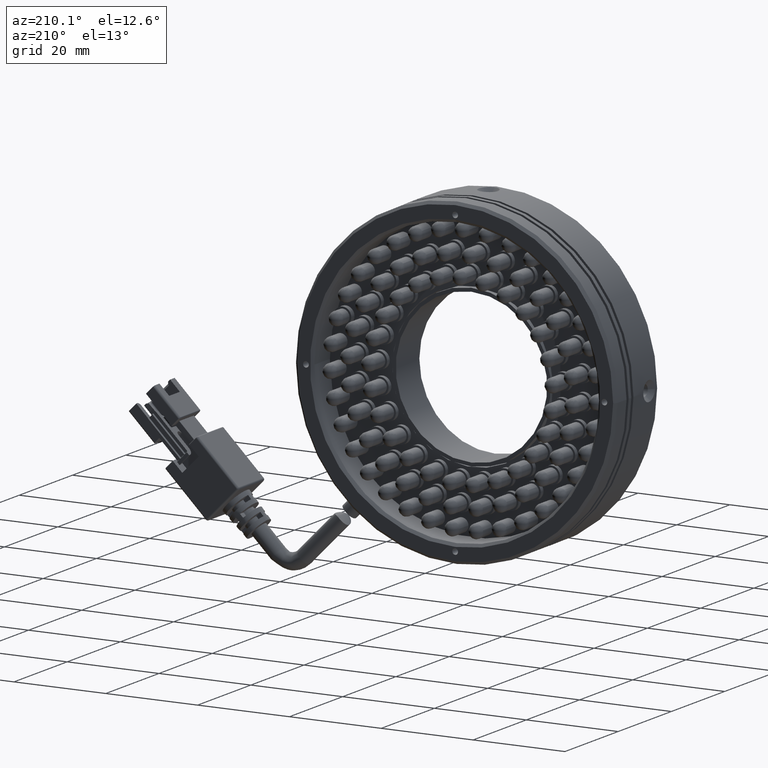
[diagram: clean part render]
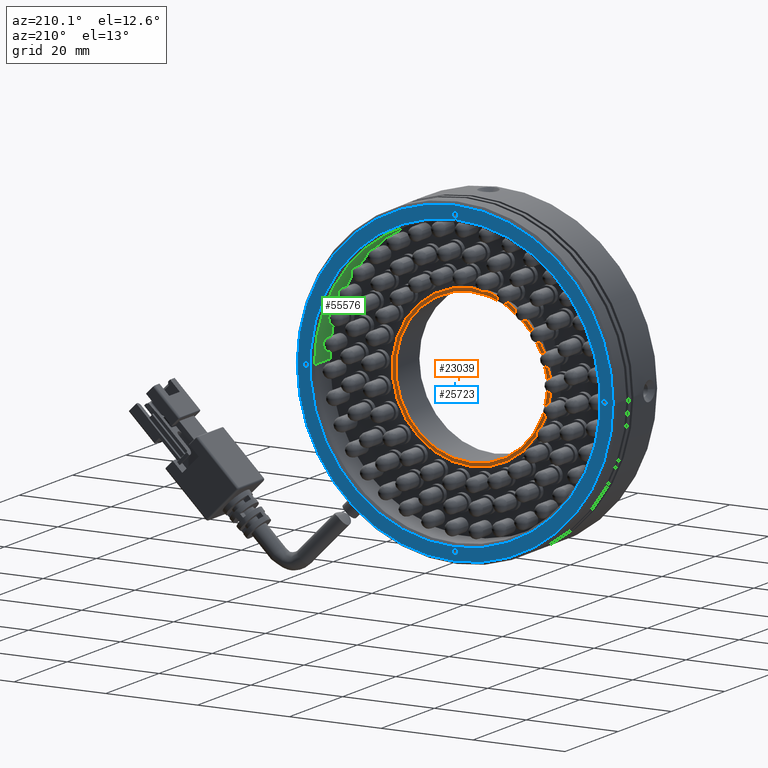
[diagram: same view with three faces highlighted in distinct colors, each labeled with its STEP entity id]
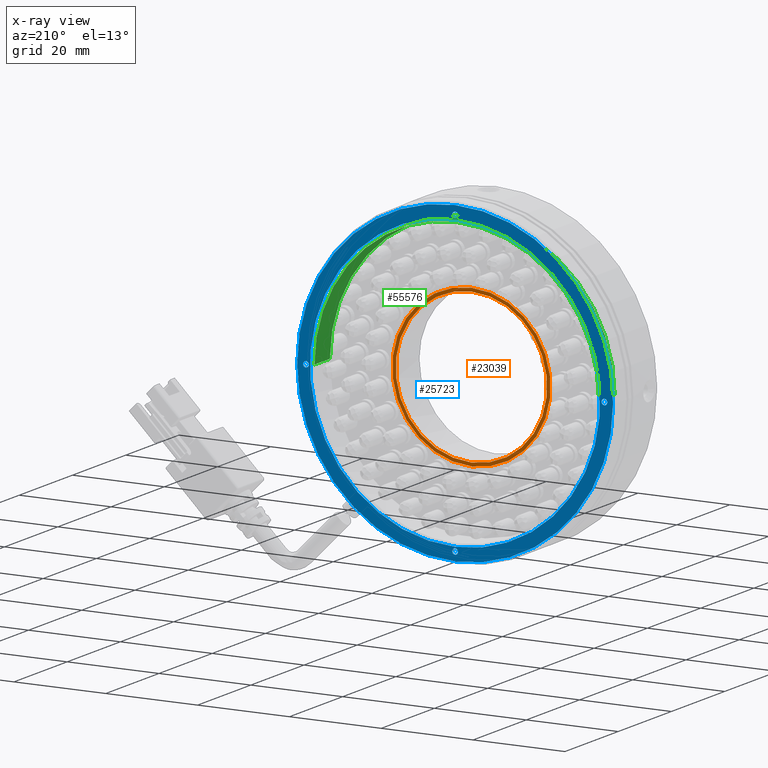
[diagram: x-ray of the same camera — body ghosted, the three highlighted faces saturated]
A machine part, auxiliary view with three faces highlighted in distinct colors.
The next image is the same camera in x-ray (body ghosted, the three faces saturated) — at least one of them is partly hidden behind the body in this view.
Their STEP definitions:

[orange] entity #23039 — the highlighted planar face has unit normal (0, -1, 0).
#7401 = CARTESIAN_POINT ( 'NONE',  ( -24.92313932795383400, 5.620185881597988600, 0.0000000000000000000 ) ) ;
#10819 = CARTESIAN_POINT ( 'NONE',  ( -24.92313932795383400, 5.620185881597988600, 16.50000000000000700 ) ) ;
#14003 = DIRECTION ( 'NONE',  ( 0.0000000000000000000, 0.0000000000000000000, 1.000000000000000000 ) ) ;
#14969 = EDGE_CURVE ( 'NONE', #53001, #51553, #66699, .T. ) ;
#16779 = AXIS2_PLACEMENT_3D ( 'NONE', #59810, #20650, #66394 ) ;
#19070 = CARTESIAN_POINT ( 'NONE',  ( -24.92313932795383000, 5.620185881597988600, -17.25000000000000700 ) ) ;
#19380 = ORIENTED_EDGE ( 'NONE', *, *, #22209, .T. ) ;
#19651 = CARTESIAN_POINT ( 'NONE',  ( -8.423139327953826700, 5.620185881597988600, 0.0000000000000000000 ) ) ;
#20650 = DIRECTION ( 'NONE',  ( 0.0000000000000000000, -1.000000000000000000, 0.0000000000000000000 ) ) ;
#21167 = CARTESIAN_POINT ( 'NONE',  ( -24.92313932795383400, 5.620185881597988600, 0.0000000000000000000 ) ) ;
#22209 = EDGE_CURVE ( 'NONE', #51553, #53001, #72501, .T. ) ;
#22962 = DIRECTION ( 'NONE',  ( 0.0000000000000000000, -1.000000000000000000, 0.0000000000000000000 ) ) ;
#23039 = ADVANCED_FACE ( 'NONE', ( #66033, #31347 ), #51964, .F. ) ;
#25634 = ORIENTED_EDGE ( 'NONE', *, *, #71842, .F. ) ;
#26303 = DIRECTION ( 'NONE',  ( 0.0000000000000000000, -0.0000000000000000000, -1.000000000000000000 ) ) ;
#27786 = DIRECTION ( 'NONE',  ( 0.0000000000000000000, 0.0000000000000000000, 1.000000000000000000 ) ) ;
#28705 = ORIENTED_EDGE ( 'NONE', *, *, #14969, .T. ) ;
#30907 = EDGE_LOOP ( 'NONE', ( #38223, #25634 ) ) ;
#31347 = FACE_BOUND ( 'NONE', #39179, .T. ) ;
#36794 = AXIS2_PLACEMENT_3D ( 'NONE', #21167, #66924, #27786 ) ;
#37661 = CIRCLE ( 'NONE', #51253, 17.25000000000000700 ) ;
#38223 = ORIENTED_EDGE ( 'NONE', *, *, #52727, .F. ) ;
#38633 = VERTEX_POINT ( 'NONE', #19070 ) ;
#39179 = EDGE_LOOP ( 'NONE', ( #28705, #19380 ) ) ;
#51253 = AXIS2_PLACEMENT_3D ( 'NONE', #7401, #53214, #14003 ) ;
#51553 = VERTEX_POINT ( 'NONE', #64899 ) ;
#51964 = PLANE ( 'NONE',  #79590 ) ;
#52727 = EDGE_CURVE ( 'NONE', #70701, #38633, #55014, .T. ) ;
#53001 = VERTEX_POINT ( 'NONE', #10819 ) ;
#53214 = DIRECTION ( 'NONE',  ( 0.0000000000000000000, -1.000000000000000000, 0.0000000000000000000 ) ) ;
#55014 = CIRCLE ( 'NONE', #16779, 17.25000000000000700 ) ;
#59810 = CARTESIAN_POINT ( 'NONE',  ( -24.92313932795383400, 5.620185881597988600, 0.0000000000000000000 ) ) ;
#62100 = CARTESIAN_POINT ( 'NONE',  ( -24.92313932795383400, 5.620185881597988600, 0.0000000000000000000 ) ) ;
#64899 = CARTESIAN_POINT ( 'NONE',  ( -24.92313932795383000, 5.620185881597988600, -16.50000000000000700 ) ) ;
#65414 = DIRECTION ( 'NONE',  ( 0.0000000000000000000, -1.000000000000000000, 0.0000000000000000000 ) ) ;
#66033 = FACE_OUTER_BOUND ( 'NONE', #30907, .T. ) ;
#66394 = DIRECTION ( 'NONE',  ( 0.0000000000000000000, 0.0000000000000000000, 1.000000000000000000 ) ) ;
#66699 = CIRCLE ( 'NONE', #36794, 16.50000000000000700 ) ;
#66924 = DIRECTION ( 'NONE',  ( 0.0000000000000000000, -1.000000000000000000, 0.0000000000000000000 ) ) ;
#67453 = AXIS2_PLACEMENT_3D ( 'NONE', #62100, #22962, #68682 ) ;
#68682 = DIRECTION ( 'NONE',  ( 0.0000000000000000000, 0.0000000000000000000, 1.000000000000000000 ) ) ;
#70701 = VERTEX_POINT ( 'NONE', #77830 ) ;
#71842 = EDGE_CURVE ( 'NONE', #38633, #70701, #37661, .T. ) ;
#72501 = CIRCLE ( 'NONE', #67453, 16.50000000000000700 ) ;
#77830 = CARTESIAN_POINT ( 'NONE',  ( -24.92313932795383400, 5.620185881597988600, 17.25000000000000700 ) ) ;
#79590 = AXIS2_PLACEMENT_3D ( 'NONE', #19651, #65414, #26303 ) ;

[blue] entity #25723 — the highlighted planar face has unit normal (0, -1, 0).
#188 = EDGE_CURVE ( 'NONE', #34768, #588, #30951, .T. ) ;
#588 = VERTEX_POINT ( 'NONE', #17271 ) ;
#1223 = CARTESIAN_POINT ( 'NONE',  ( -24.92313932795383400, 11.72018588159799900, -9.729667600217996800E-017 ) ) ;
#2119 = EDGE_CURVE ( 'NONE', #57945, #35673, #47256, .T. ) ;
#2318 = AXIS2_PLACEMENT_3D ( 'NONE', #37620, #83290, #44134 ) ;
#2716 = FACE_BOUND ( 'NONE', #23201, .T. ) ;
#2779 = CARTESIAN_POINT ( 'NONE',  ( -24.92313932795383400, 11.72018588159799900, -9.729667600217996800E-017 ) ) ;
#3129 = CARTESIAN_POINT ( 'NONE',  ( 8.201860672046166200, 11.72018588159799900, -2.290514199134798000E-013 ) ) ;
#3296 = CIRCLE ( 'NONE', #29861, 34.40000000000001300 ) ;
#4044 = DIRECTION ( 'NONE',  ( 0.0000000000000000000, -1.000000000000000000, 0.0000000000000000000 ) ) ;
#4374 = ORIENTED_EDGE ( 'NONE', *, *, #62117, .T. ) ;
#4425 = CARTESIAN_POINT ( 'NONE',  ( -24.29813932795417500, 11.72018588159799900, -32.50000000000000000 ) ) ;
#4694 = CIRCLE ( 'NONE', #13855, 31.60000000000000900 ) ;
#4818 = FACE_BOUND ( 'NONE', #41801, .T. ) ;
#6480 = DIRECTION ( 'NONE',  ( -0.0000000000000000000, 1.000000000000000000, 0.0000000000000000000 ) ) ;
#7604 = PLANE ( 'NONE',  #10225 ) ;
#7873 = DIRECTION ( 'NONE',  ( 1.000000000000000000, 0.0000000000000000000, -3.488528910189358300E-015 ) ) ;
#8055 = EDGE_LOOP ( 'NONE', ( #47944, #82881 ) ) ;
#9318 = AXIS2_PLACEMENT_3D ( 'NONE', #37931, #83594, #44452 ) ;
#9456 = DIRECTION ( 'NONE',  ( 3.513364001978342500E-015, 0.0000000000000000000, 1.000000000000000000 ) ) ;
#10225 = AXIS2_PLACEMENT_3D ( 'NONE', #1223, #47161, #7873 ) ;
#13139 = DIRECTION ( 'NONE',  ( 1.063079476264913800E-047, -1.000000000000000000, 3.047357506941829000E-033 ) ) ;
#13855 = AXIS2_PLACEMENT_3D ( 'NONE', #2779, #48723, #9456 ) ;
#16866 = CIRCLE ( 'NONE', #9318, 0.6250000000000005600 ) ;
#17271 = CARTESIAN_POINT ( 'NONE',  ( -56.79813932795383400, 11.72018588159799900, 4.515955332984359000E-013 ) ) ;
#18986 = CARTESIAN_POINT ( 'NONE',  ( -24.92313932795372400, 11.72018588159799900, 31.60000000000000900 ) ) ;
#19540 = EDGE_CURVE ( 'NONE', #64676, #39144, #4694, .T. ) ;
#20318 = VERTEX_POINT ( 'NONE', #4425 ) ;
#20659 = AXIS2_PLACEMENT_3D ( 'NONE', #68234, #68065, #67954 ) ;
#20968 = CARTESIAN_POINT ( 'NONE',  ( -24.29813932795372000, 11.72018588159799900, 32.50000000000000000 ) ) ;
#23201 = EDGE_LOOP ( 'NONE', ( #50132, #76904 ) ) ;
#25723 = ADVANCED_FACE ( 'NONE', ( #2716, #55038, #4818, #53002, #72470, #35708 ), #7604, .F. ) ;
#27501 = VERTEX_POINT ( 'NONE', #39625 ) ;
#29861 = AXIS2_PLACEMENT_3D ( 'NONE', #43450, #4044, #49950 ) ;
#30951 = CIRCLE ( 'NONE', #69807, 0.6250000000000005600 ) ;
#31726 = ORIENTED_EDGE ( 'NONE', *, *, #19540, .T. ) ;
#31729 = DIRECTION ( 'NONE',  ( -0.0000000000000000000, 1.000000000000000000, 0.0000000000000000000 ) ) ;
#31941 = EDGE_LOOP ( 'NONE', ( #48268, #39302 ) ) ;
#34768 = VERTEX_POINT ( 'NONE', #83125 ) ;
#34985 = CARTESIAN_POINT ( 'NONE',  ( 7.576860672046166200, 11.72018588159799900, -2.269476297695581500E-013 ) ) ;
#35345 = DIRECTION ( 'NONE',  ( -0.0000000000000000000, 1.000000000000000000, 0.0000000000000000000 ) ) ;
#35673 = VERTEX_POINT ( 'NONE', #3129 ) ;
#35708 = FACE_BOUND ( 'NONE', #55854, .T. ) ;
#36254 = VERTEX_POINT ( 'NONE', #55195 ) ;
#36941 = CARTESIAN_POINT ( 'NONE',  ( -24.92313932795372000, 11.72018588159799900, 32.50000000000000000 ) ) ;
#37411 = CARTESIAN_POINT ( 'NONE',  ( -25.54813932795417500, 11.72018588159799900, -32.50000000000000000 ) ) ;
#37620 = CARTESIAN_POINT ( 'NONE',  ( -24.92313932795383400, 11.72018588159799900, -9.729667600217996800E-017 ) ) ;
#37931 = CARTESIAN_POINT ( 'NONE',  ( -24.92313932795372000, 11.72018588159799900, 32.50000000000000000 ) ) ;
#38711 = CARTESIAN_POINT ( 'NONE',  ( -59.32313932795384700, 11.72018588159799900, 1.252041809006099200E-013 ) ) ;
#38754 = AXIS2_PLACEMENT_3D ( 'NONE', #52374, #13139, #58951 ) ;
#39144 = VERTEX_POINT ( 'NONE', #18986 ) ;
#39302 = ORIENTED_EDGE ( 'NONE', *, *, #80395, .F. ) ;
#39625 = CARTESIAN_POINT ( 'NONE',  ( 9.476860672046179000, 11.72018588159799900, -1.201026911865161400E-013 ) ) ;
#41563 = DIRECTION ( 'NONE',  ( -1.000000000000000000, 0.0000000000000000000, 3.488528910189378000E-015 ) ) ;
#41801 = EDGE_LOOP ( 'NONE', ( #76999, #44572 ) ) ;
#41906 = EDGE_CURVE ( 'NONE', #50727, #36254, #16866, .T. ) ;
#42649 = CIRCLE ( 'NONE', #72867, 0.6250000000000005600 ) ;
#43450 = CARTESIAN_POINT ( 'NONE',  ( -24.92313932795383400, 11.72018588159799900, -9.729667600217996800E-017 ) ) ;
#43471 = DIRECTION ( 'NONE',  ( -1.000000000000000000, 0.0000000000000000000, 0.0000000000000000000 ) ) ;
#44134 = DIRECTION ( 'NONE',  ( 1.000000000000000000, 0.0000000000000000000, -3.488528910189358300E-015 ) ) ;
#44452 = DIRECTION ( 'NONE',  ( -1.000000000000000000, 0.0000000000000000000, 0.0000000000000000000 ) ) ;
#44572 = ORIENTED_EDGE ( 'NONE', *, *, #50775, .F. ) ;
#44809 = AXIS2_PLACEMENT_3D ( 'NONE', #45862, #6480, #52356 ) ;
#45368 = DIRECTION ( 'NONE',  ( -1.000000000000000000, 0.0000000000000000000, 3.488528910189299100E-015 ) ) ;
#45534 = CARTESIAN_POINT ( 'NONE',  ( -24.92313932795394400, 11.72018588159799900, -31.60000000000000900 ) ) ;
#45862 = CARTESIAN_POINT ( 'NONE',  ( -24.92313932795417500, 11.72018588159799900, -32.50000000000000000 ) ) ;
#46449 = DIRECTION ( 'NONE',  ( -0.0000000000000000000, 1.000000000000000000, 0.0000000000000000000 ) ) ;
#46991 = CARTESIAN_POINT ( 'NONE',  ( -57.42313932795383400, 11.72018588159799900, 4.536993234423575500E-013 ) ) ;
#47161 = DIRECTION ( 'NONE',  ( 0.0000000000000000000, -1.000000000000000000, 0.0000000000000000000 ) ) ;
#47256 = CIRCLE ( 'NONE', #20659, 0.6250000000000005600 ) ;
#47944 = ORIENTED_EDGE ( 'NONE', *, *, #2119, .F. ) ;
#48268 = ORIENTED_EDGE ( 'NONE', *, *, #72139, .F. ) ;
#48723 = DIRECTION ( 'NONE',  ( 1.063079476264913800E-047, -1.000000000000000000, 3.047357506941829000E-033 ) ) ;
#49950 = DIRECTION ( 'NONE',  ( 1.000000000000000000, 0.0000000000000000000, -3.488528910189358300E-015 ) ) ;
#50132 = ORIENTED_EDGE ( 'NONE', *, *, #64959, .F. ) ;
#50727 = VERTEX_POINT ( 'NONE', #20968 ) ;
#50775 = EDGE_CURVE ( 'NONE', #20318, #81719, #71705, .T. ) ;
#51411 = ORIENTED_EDGE ( 'NONE', *, *, #188, .F. ) ;
#52356 = DIRECTION ( 'NONE',  ( -1.000000000000000000, 0.0000000000000000000, 0.0000000000000000000 ) ) ;
#52374 = CARTESIAN_POINT ( 'NONE',  ( -24.92313932795383400, 11.72018588159799900, -9.729667600217996800E-017 ) ) ;
#52609 = EDGE_CURVE ( 'NONE', #81719, #20318, #75598, .T. ) ;
#53002 = FACE_BOUND ( 'NONE', #57044, .T. ) ;
#54574 = CARTESIAN_POINT ( 'NONE',  ( 6.951860672046166200, 11.72018588159799900, -2.247672992006898000E-013 ) ) ;
#55038 = FACE_BOUND ( 'NONE', #8055, .T. ) ;
#55195 = CARTESIAN_POINT ( 'NONE',  ( -25.54813932795372000, 11.72018588159799900, 32.50000000000000000 ) ) ;
#55854 = EDGE_LOOP ( 'NONE', ( #4374, #31726 ) ) ;
#57044 = EDGE_LOOP ( 'NONE', ( #51411, #70264 ) ) ;
#57945 = VERTEX_POINT ( 'NONE', #54574 ) ;
#58220 = CIRCLE ( 'NONE', #62623, 0.6250000000000005600 ) ;
#58951 = DIRECTION ( 'NONE',  ( 3.513364001978342500E-015, 0.0000000000000000000, 1.000000000000000000 ) ) ;
#62117 = EDGE_CURVE ( 'NONE', #39144, #64676, #74809, .T. ) ;
#62623 = AXIS2_PLACEMENT_3D ( 'NONE', #36941, #82619, #43471 ) ;
#64676 = VERTEX_POINT ( 'NONE', #45534 ) ;
#64959 = EDGE_CURVE ( 'NONE', #36254, #50727, #58220, .T. ) ;
#67255 = AXIS2_PLACEMENT_3D ( 'NONE', #34985, #80680, #41563 ) ;
#67954 = DIRECTION ( 'NONE',  ( -1.000000000000000000, 0.0000000000000000000, 3.488528910189378000E-015 ) ) ;
#68065 = DIRECTION ( 'NONE',  ( -0.0000000000000000000, 1.000000000000000000, 0.0000000000000000000 ) ) ;
#68234 = CARTESIAN_POINT ( 'NONE',  ( 7.576860672046166200, 11.72018588159799900, -2.269476297695581500E-013 ) ) ;
#69206 = AXIS2_PLACEMENT_3D ( 'NONE', #74460, #35345, #81040 ) ;
#69807 = AXIS2_PLACEMENT_3D ( 'NONE', #46991, #46449, #45368 ) ;
#70175 = EDGE_CURVE ( 'NONE', #588, #34768, #42649, .T. ) ;
#70264 = ORIENTED_EDGE ( 'NONE', *, *, #70175, .F. ) ;
#70824 = CARTESIAN_POINT ( 'NONE',  ( -57.42313932795383400, 11.72018588159799900, 4.536993234423575500E-013 ) ) ;
#71705 = CIRCLE ( 'NONE', #69206, 0.6250000000000005600 ) ;
#72139 = EDGE_CURVE ( 'NONE', #27501, #80638, #79476, .T. ) ;
#72470 = FACE_OUTER_BOUND ( 'NONE', #31941, .T. ) ;
#72867 = AXIS2_PLACEMENT_3D ( 'NONE', #70824, #31729, #77417 ) ;
#74460 = CARTESIAN_POINT ( 'NONE',  ( -24.92313932795417500, 11.72018588159799900, -32.50000000000000000 ) ) ;
#74809 = CIRCLE ( 'NONE', #38754, 31.60000000000000900 ) ;
#75598 = CIRCLE ( 'NONE', #44809, 0.6250000000000005600 ) ;
#76904 = ORIENTED_EDGE ( 'NONE', *, *, #41906, .F. ) ;
#76999 = ORIENTED_EDGE ( 'NONE', *, *, #52609, .F. ) ;
#77417 = DIRECTION ( 'NONE',  ( -1.000000000000000000, 0.0000000000000000000, 3.488528910189299100E-015 ) ) ;
#79111 = CIRCLE ( 'NONE', #67255, 0.6250000000000005600 ) ;
#79476 = CIRCLE ( 'NONE', #2318, 34.40000000000001300 ) ;
#80395 = EDGE_CURVE ( 'NONE', #80638, #27501, #3296, .T. ) ;
#80638 = VERTEX_POINT ( 'NONE', #38711 ) ;
#80680 = DIRECTION ( 'NONE',  ( -0.0000000000000000000, 1.000000000000000000, 0.0000000000000000000 ) ) ;
#81040 = DIRECTION ( 'NONE',  ( -1.000000000000000000, 0.0000000000000000000, 0.0000000000000000000 ) ) ;
#81719 = VERTEX_POINT ( 'NONE', #37411 ) ;
#82090 = EDGE_CURVE ( 'NONE', #35673, #57945, #79111, .T. ) ;
#82619 = DIRECTION ( 'NONE',  ( -0.0000000000000000000, 1.000000000000000000, 0.0000000000000000000 ) ) ;
#82881 = ORIENTED_EDGE ( 'NONE', *, *, #82090, .F. ) ;
#83125 = CARTESIAN_POINT ( 'NONE',  ( -58.04813932795383400, 11.72018588159799900, 4.558796540112258500E-013 ) ) ;
#83290 = DIRECTION ( 'NONE',  ( 0.0000000000000000000, -1.000000000000000000, 0.0000000000000000000 ) ) ;
#83594 = DIRECTION ( 'NONE',  ( -0.0000000000000000000, 1.000000000000000000, 0.0000000000000000000 ) ) ;

[green] entity #55576 — the highlighted cylindrical surface (partial cylindrical patch) has radius 31 mm, axis along (-0, 1, 0).
#745 = AXIS2_PLACEMENT_3D ( 'NONE', #45792, #6420, #52284 ) ;
#3081 = CIRCLE ( 'NONE', #80673, 31.00000000000000000 ) ;
#6263 = DIRECTION ( 'NONE',  ( -0.0000000000000000000, 1.000000000000000000, 0.0000000000000000000 ) ) ;
#6420 = DIRECTION ( 'NONE',  ( 0.0000000000000000000, -1.000000000000000000, -0.0000000000000000000 ) ) ;
#9468 = EDGE_CURVE ( 'NONE', #79051, #40326, #3081, .T. ) ;
#9672 = CARTESIAN_POINT ( 'NONE',  ( -55.92313932795383400, 5.320185881597999400, 1.080470995398679300E-013 ) ) ;
#13984 = AXIS2_PLACEMENT_3D ( 'NONE', #45636, #6263, #52138 ) ;
#15679 = VERTEX_POINT ( 'NONE', #61060 ) ;
#17904 = DIRECTION ( 'NONE',  ( 0.0000000000000000000, -1.000000000000000000, -0.0000000000000000000 ) ) ;
#23281 = ORIENTED_EDGE ( 'NONE', *, *, #63059, .F. ) ;
#25034 = EDGE_CURVE ( 'NONE', #62721, #15679, #80932, .T. ) ;
#26491 = DIRECTION ( 'NONE',  ( -1.000000000000000000, 0.0000000000000000000, 3.488528910189358300E-015 ) ) ;
#26607 = VECTOR ( 'NONE', #76769, 1000.000000000000000 ) ;
#28062 = LINE ( 'NONE', #31315, #43456 ) ;
#31315 = CARTESIAN_POINT ( 'NONE',  ( -55.92313932795383400, -3.279814118402000700, 1.080470995398679300E-013 ) ) ;
#32063 = VERTEX_POINT ( 'NONE', #47398 ) ;
#32817 = CARTESIAN_POINT ( 'NONE',  ( -24.92313932795383400, -3.279814118402000700, -9.729667600217996800E-017 ) ) ;
#36013 = EDGE_LOOP ( 'NONE', ( #62886, #43245, #58288, #23281, #56076 ) ) ;
#37916 = DIRECTION ( 'NONE',  ( -0.0000000000000000000, 1.000000000000000000, 0.0000000000000000000 ) ) ;
#40326 = VERTEX_POINT ( 'NONE', #50605 ) ;
#43245 = ORIENTED_EDGE ( 'NONE', *, *, #25034, .F. ) ;
#43456 = VECTOR ( 'NONE', #37916, 1000.000000000000000 ) ;
#44020 = LINE ( 'NONE', #50981, #26607 ) ;
#45636 = CARTESIAN_POINT ( 'NONE',  ( -24.92313932795383400, 5.320185881597999400, -9.729667600217996800E-017 ) ) ;
#45792 = CARTESIAN_POINT ( 'NONE',  ( -24.92313932795383400, 11.12018588159798500, -9.729667600217996800E-017 ) ) ;
#47398 = CARTESIAN_POINT ( 'NONE',  ( -55.92313932795383400, 11.12018588159798500, 1.080470995398679300E-013 ) ) ;
#48810 = AXIS2_PLACEMENT_3D ( 'NONE', #32817, #71627, #26491 ) ;
#49479 = FACE_OUTER_BOUND ( 'NONE', #36013, .T. ) ;
#50605 = CARTESIAN_POINT ( 'NONE',  ( -24.92313932795372400, 11.12018588159798500, 31.00000000000000000 ) ) ;
#50981 = CARTESIAN_POINT ( 'NONE',  ( 6.076860672046165300, -3.279814118402000700, -1.044452878145155000E-013 ) ) ;
#52138 = DIRECTION ( 'NONE',  ( -1.000000000000000000, 0.0000000000000000000, 3.488528910189358300E-015 ) ) ;
#52284 = DIRECTION ( 'NONE',  ( -1.000000000000000000, 0.0000000000000000000, 4.376707329889484300E-015 ) ) ;
#55576 = ADVANCED_FACE ( 'NONE', ( #49479 ), #76077, .F. ) ;
#56076 = ORIENTED_EDGE ( 'NONE', *, *, #9468, .F. ) ;
#57078 = CARTESIAN_POINT ( 'NONE',  ( -24.92313932795383400, 11.12018588159798500, -9.729667600217996800E-017 ) ) ;
#58288 = ORIENTED_EDGE ( 'NONE', *, *, #70581, .T. ) ;
#61060 = CARTESIAN_POINT ( 'NONE',  ( 6.076860672046165300, 5.320185881597999400, -1.044452878145155000E-013 ) ) ;
#62721 = VERTEX_POINT ( 'NONE', #9672 ) ;
#62886 = ORIENTED_EDGE ( 'NONE', *, *, #73771, .F. ) ;
#63059 = EDGE_CURVE ( 'NONE', #40326, #32063, #76503, .T. ) ;
#63688 = DIRECTION ( 'NONE',  ( -1.000000000000000000, 0.0000000000000000000, 3.488528910189358300E-015 ) ) ;
#70581 = EDGE_CURVE ( 'NONE', #62721, #32063, #28062, .T. ) ;
#71627 = DIRECTION ( 'NONE',  ( -0.0000000000000000000, 1.000000000000000000, 0.0000000000000000000 ) ) ;
#73349 = CARTESIAN_POINT ( 'NONE',  ( 6.076860672046165300, 11.12018588159798500, -1.044452878145155000E-013 ) ) ;
#73771 = EDGE_CURVE ( 'NONE', #15679, #79051, #44020, .T. ) ;
#76077 = CYLINDRICAL_SURFACE ( 'NONE', #48810, 31.00000000000000000 ) ;
#76503 = CIRCLE ( 'NONE', #745, 31.00000000000000000 ) ;
#76769 = DIRECTION ( 'NONE',  ( -0.0000000000000000000, 1.000000000000000000, 0.0000000000000000000 ) ) ;
#79051 = VERTEX_POINT ( 'NONE', #73349 ) ;
#80673 = AXIS2_PLACEMENT_3D ( 'NONE', #57078, #17904, #63688 ) ;
#80932 = CIRCLE ( 'NONE', #13984, 31.00000000000000000 ) ;